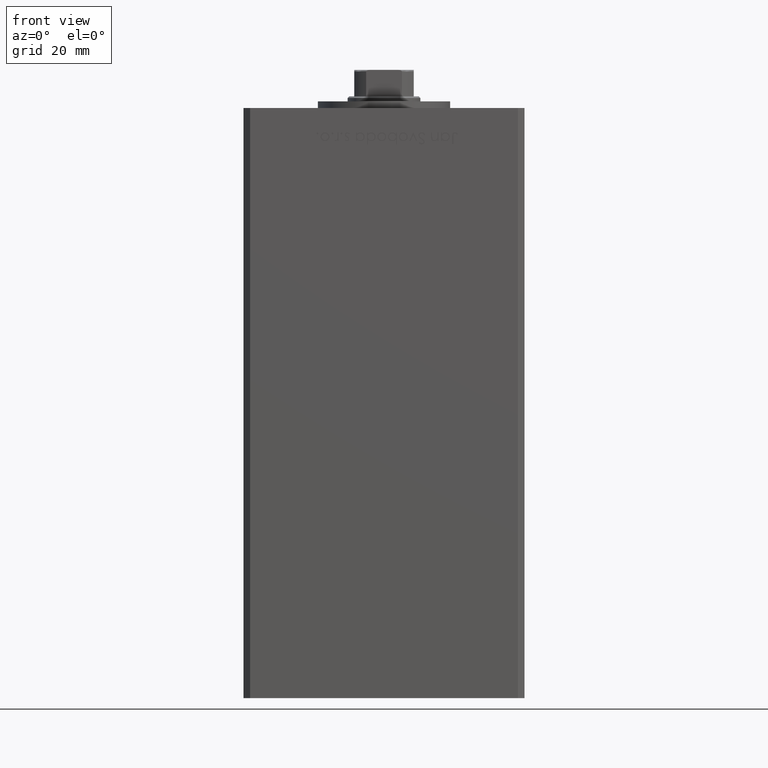
[diagram: clean part render]
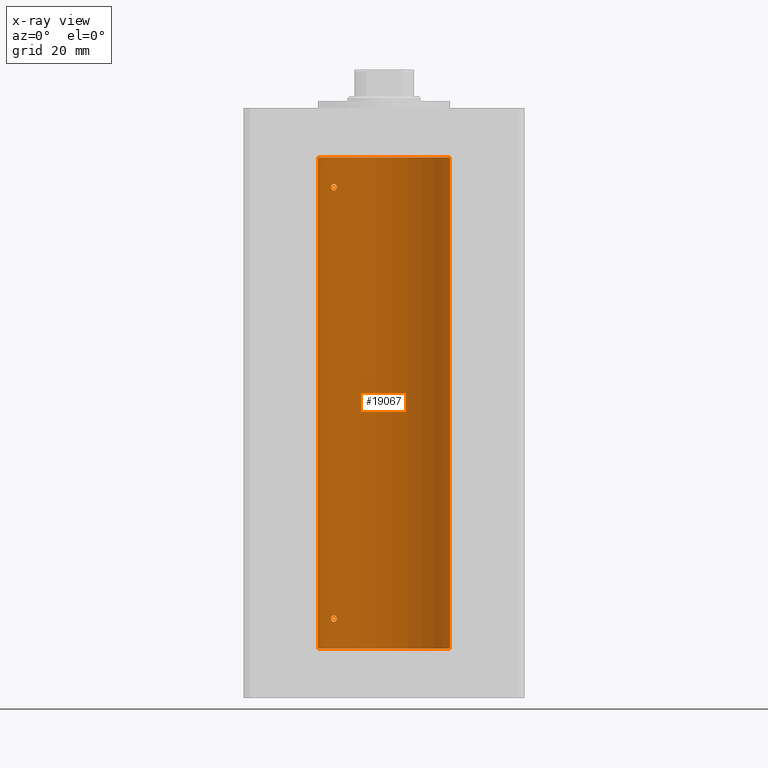
[diagram: x-ray — body ghosted, one internal face saturated and labeled with its STEP entity id]
A machine part, front view, then the same camera in x-ray: the body is ghosted and one INTERNAL B-rep face — a face not visible from any outside direction — is saturated and labeled: STEP entity #19067.
In plain terms, the highlighted cylindrical surface (partial cylindrical patch) has radius 20 mm, axis along (-0, -0, -1).
Its self-contained STEP definition (entity closure, byte-faithful):
#832 = CARTESIAN_POINT ( 'NONE',  ( -15.08054978948644198, 13.13774395934156836, 8.002776544152998994 ) ) ;
#903 = AXIS2_PLACEMENT_3D ( 'NONE', #5692, #41063, #37623 ) ;
#3768 = CARTESIAN_POINT ( 'NONE',  ( -14.98166541227929116, 13.25033217142396325, 8.024769614914273319 ) ) ;
#3857 = CARTESIAN_POINT ( 'NONE',  ( -15.65267653428112382, 12.45028749062557161, 140.3454911519634720 ) ) ;
#4512 = EDGE_CURVE ( 'NONE', #9910, #47240, #39162, .T. ) ;
#4538 = CARTESIAN_POINT ( 'NONE',  ( -14.51590294503183820, 13.75881262167379049, 8.336781207422363948 ) ) ;
#5268 = VERTEX_POINT ( 'NONE', #14088 ) ;
#5692 = CARTESIAN_POINT ( 'NONE',  ( 0.000000000000000000, 0.000000000000000000, 148.5000000000000000 ) ) ;
#6208 = AXIS2_PLACEMENT_3D ( 'NONE', #15851, #44365, #19817 ) ;
#6546 = CARTESIAN_POINT ( 'NONE',  ( -15.80861854366319719, 12.25167421322532491, 9.676052991901704203 ) ) ;
#7075 = CARTESIAN_POINT ( 'NONE',  ( -14.78630942130979342, 13.46798002156744545, 9.891415279583977593 ) ) ;
#7291 = CARTESIAN_POINT ( 'NONE',  ( -15.99999999999999645, 12.00000000000001421, 139.6542407199934814 ) ) ;
#7327 = CARTESIAN_POINT ( 'NONE',  ( -14.28285685708537756, 14.00000000000032863, 8.999999999999852562 ) ) ;
#7548 = CARTESIAN_POINT ( 'NONE',  ( -15.87665094074984573, 12.16298652314402240, 140.0660500660139576 ) ) ;
#7692 = FACE_OUTER_BOUND ( 'NONE', #16375, .T. ) ;
#7967 = CYLINDRICAL_SURFACE ( 'NONE', #6208, 20.00000000000000000 ) ;
#8038 = CARTESIAN_POINT ( 'NONE',  ( -14.98166541227928583, 13.25033217142395792, 138.5247696149142200 ) ) ;
#8307 = CARTESIAN_POINT ( 'NONE',  ( -15.99999999999999645, 12.00000000000000711, 139.4999999999999716 ) ) ;
#8396 = LINE ( 'NONE', #29194, #46691 ) ;
#8994 = ORIENTED_EDGE ( 'NONE', *, *, #40301, .T. ) ;
#9048 = CARTESIAN_POINT ( 'NONE',  ( -15.57359523075762198, 12.55100654799543314, 138.5686142754107095 ) ) ;
#9910 = VERTEX_POINT ( 'NONE', #38852 ) ;
#10227 = CARTESIAN_POINT ( 'NONE',  ( -20.00000000000000000, 0.000000000000000000, 148.5000000000000000 ) ) ;
#10243 = CARTESIAN_POINT ( 'NONE',  ( 0.000000000000000000, 0.000000000000000000, 0.000000000000000000 ) ) ;
#10522 = CARTESIAN_POINT ( 'NONE',  ( -14.69171503997126571, 13.57092520311232420, 9.830547039779306218 ) ) ;
#11196 = VERTEX_POINT ( 'NONE', #11310 ) ;
#11310 = CARTESIAN_POINT ( 'NONE',  ( 20.00000000000000000, 2.449293598294706513E-15, 148.5000000000000000 ) ) ;
#11563 = CARTESIAN_POINT ( 'NONE',  ( -14.40763032799400989, 13.87162499441319952, 9.495217475255243400 ) ) ;
#11925 = FACE_BOUND ( 'NONE', #29344, .T. ) ;
#11953 = CARTESIAN_POINT ( 'NONE',  ( -15.99999999999999645, 12.00000000000000533, 9.000000000000001776 ) ) ;
#12512 = CARTESIAN_POINT ( 'NONE',  ( -14.51590294503183109, 13.75881262167379404, 138.8367812074224332 ) ) ;
#12762 = CARTESIAN_POINT ( 'NONE',  ( -14.43642497935765512, 13.84184969151371902, 138.9420533359229069 ) ) ;
#13417 = EDGE_CURVE ( 'NONE', #47240, #9910, #27868, .T. ) ;
#13464 = CARTESIAN_POINT ( 'NONE',  ( -20.00000000000000000, 0.000000000000000000, 148.5000000000000000 ) ) ;
#13911 = CARTESIAN_POINT ( 'NONE',  ( -14.98188199575990431, 13.25008090651448001, 140.4752364028577176 ) ) ;
#13974 = CARTESIAN_POINT ( 'NONE',  ( 20.00000000000000000, 2.449293598294706513E-15, 0.000000000000000000 ) ) ;
#14088 = CARTESIAN_POINT ( 'NONE',  ( -14.28285685708538111, 14.00000000000032685, 139.4999999999998579 ) ) ;
#15020 = VERTEX_POINT ( 'NONE', #41888 ) ;
#15482 = VERTEX_POINT ( 'NONE', #13464 ) ;
#15851 = CARTESIAN_POINT ( 'NONE',  ( 0.000000000000000000, 0.000000000000000000, 148.5000000000000000 ) ) ;
#16145 = CARTESIAN_POINT ( 'NONE',  ( -15.97265980134107721, 12.03662641108511977, 8.695337314863895273 ) ) ;
#16375 = EDGE_LOOP ( 'NONE', ( #47198, #8994, #24261, #49344 ) ) ;
#16631 = FACE_BOUND ( 'NONE', #25849, .T. ) ;
#16696 = CARTESIAN_POINT ( 'NONE',  ( -15.08054978948642955, 13.13774395934156658, 138.5027765441530221 ) ) ;
#18627 = CARTESIAN_POINT ( 'NONE',  ( -14.56006338825494950, 13.71162570780885304, 140.2053579553632972 ) ) ;
#19067 = ADVANCED_FACE ( 'NONE', ( #7692, #16631, #11925 ), #7967, .F. ) ;
#19674 = CARTESIAN_POINT ( 'NONE',  ( -15.99999999999999645, 12.00000000000000711, 139.4999999999999716 ) ) ;
#19817 = DIRECTION ( 'NONE',  ( -1.000000000000000000, 0.000000000000000000, 0.000000000000000000 ) ) ;
#19843 = CARTESIAN_POINT ( 'NONE',  ( -14.43642497935765512, 13.84184969151371547, 8.442053335922926394 ) ) ;
#20170 = EDGE_CURVE ( 'NONE', #11196, #37086, #8396, .T. ) ;
#20621 = CARTESIAN_POINT ( 'NONE',  ( -14.31871019372461795, 13.96358505023715679, 8.697478539577890189 ) ) ;
#21001 = EDGE_CURVE ( 'NONE', #5268, #40527, #35167, .T. ) ;
#22363 = CARTESIAN_POINT ( 'NONE',  ( -14.51882058315760027, 13.75524947942078313, 9.658734659218600527 ) ) ;
#23146 = CARTESIAN_POINT ( 'NONE',  ( -15.65267653428113093, 12.45028749062556450, 9.845491151963429388 ) ) ;
#23388 = ORIENTED_EDGE ( 'NONE', *, *, #4512, .F. ) ;
#23395 = CARTESIAN_POINT ( 'NONE',  ( -16.00000000000000355, 12.00000000000000888, 9.154240719993492092 ) ) ;
#23449 = VECTOR ( 'NONE', #26304, 1000.000000000000000 ) ;
#23619 = CARTESIAN_POINT ( 'NONE',  ( -15.28000793038419403, 12.90520882930644042, 140.5021502285312636 ) ) ;
#24261 = ORIENTED_EDGE ( 'NONE', *, *, #33285, .T. ) ;
#24360 = CARTESIAN_POINT ( 'NONE',  ( -15.80909732170550441, 12.25106527276996360, 138.8244517809014553 ) ) ;
#24576 = CARTESIAN_POINT ( 'NONE',  ( -16.00000000000000355, 12.00000000000000711, 8.845692188641406162 ) ) ;
#25118 = CARTESIAN_POINT ( 'NONE',  ( -15.37869471769012009, 12.79018928545119849, 138.4951659137117872 ) ) ;
#25849 = EDGE_LOOP ( 'NONE', ( #23388, #34576 ) ) ;
#26026 = CARTESIAN_POINT ( 'NONE',  ( -14.78630942130979697, 13.46798002156743301, 140.3914152795839527 ) ) ;
#26304 = DIRECTION ( 'NONE',  ( -0.000000000000000000, -0.000000000000000000, -1.000000000000000000 ) ) ;
#26561 = CARTESIAN_POINT ( 'NONE',  ( -14.51882058315760027, 13.75524947942078136, 140.1587346592185384 ) ) ;
#26846 = CARTESIAN_POINT ( 'NONE',  ( -15.28000793038418870, 12.90520882930645108, 10.00215022853122981 ) ) ;
#27626 = CARTESIAN_POINT ( 'NONE',  ( -15.99999999999999645, 12.00000000000000533, 9.000000000000001776 ) ) ;
#27849 = CARTESIAN_POINT ( 'NONE',  ( -15.37869370082499287, 12.78737709343838880, 140.4843784334833003 ) ) ;
#27868 = B_SPLINE_CURVE_WITH_KNOTS ( 'NONE', 3,
 ( #7327, #46658, #51386, #11563, #31068, #22363, #50610, #10522, #7075, #43212, #42697, #26846, #30554, #34783, #23146, #6546, #39256, #38477, #23395, #27626 ),
 .UNSPECIFIED., .F., .F.,
 ( 4, 2, 2, 2, 2, 2, 2, 2, 2, 4 ),
 ( 0.003644921977557299617, 0.004100339128177156109, 0.004328047703487083488, 0.004555756278797011734, 0.005011173429416868226, 0.005466590580036723851, 0.005922007730656580343, 0.006377424881276436835, 0.006832842031896293328, 0.007288259182516148953 ),
 .UNSPECIFIED. ) ;
#28289 = CARTESIAN_POINT ( 'NONE',  ( -14.28285685708537756, 14.00000000000032863, 8.999999999999852562 ) ) ;
#28584 = CARTESIAN_POINT ( 'NONE',  ( -15.97265980134107366, 12.03662641108512332, 139.1953373148638775 ) ) ;
#29194 = CARTESIAN_POINT ( 'NONE',  ( 20.00000000000000000, 2.449293598294706513E-15, 148.5000000000000000 ) ) ;
#29344 = EDGE_LOOP ( 'NONE', ( #50834, #44949 ) ) ;
#29727 = CARTESIAN_POINT ( 'NONE',  ( -14.69171503997127459, 13.57092520311232065, 140.3305470397792760 ) ) ;
#29990 = CARTESIAN_POINT ( 'NONE',  ( -14.28285685708538111, 14.00000000000032685, 139.4999999999998579 ) ) ;
#30263 = LINE ( 'NONE', #10227, #23449 ) ;
#30554 = CARTESIAN_POINT ( 'NONE',  ( -15.37869370082498044, 12.78737709343839057, 9.984378433483314552 ) ) ;
#31068 = CARTESIAN_POINT ( 'NONE',  ( -14.44276720520014123, 13.83508275448403957, 9.554048662650277635 ) ) ;
#31983 = CARTESIAN_POINT ( 'NONE',  ( -14.78531327857342781, 13.46907986586309569, 8.109099006911453245 ) ) ;
#32029 = CARTESIAN_POINT ( 'NONE',  ( -15.99999999999999645, 12.00000000000001243, 139.3456921886414648 ) ) ;
#32078 = CARTESIAN_POINT ( 'NONE',  ( -15.56338254739985949, 12.56194079578774847, 140.4068150496692908 ) ) ;
#32249 = CARTESIAN_POINT ( 'NONE',  ( -14.69070843596623099, 13.57200975233014972, 8.170264738076779665 ) ) ;
#32295 = CARTESIAN_POINT ( 'NONE',  ( -15.87710824431565904, 12.16238752415382507, 138.9349218073222403 ) ) ;
#32404 = DIRECTION ( 'NONE',  ( -0.000000000000000000, -0.000000000000000000, -1.000000000000000000 ) ) ;
#32805 = CARTESIAN_POINT ( 'NONE',  ( -14.69070843596622744, 13.57200975233015683, 138.6702647380768099 ) ) ;
#33285 = EDGE_CURVE ( 'NONE', #15482, #15020, #30263, .T. ) ;
#33690 = EDGE_CURVE ( 'NONE', #40527, #5268, #48735, .T. ) ;
#33962 = CARTESIAN_POINT ( 'NONE',  ( -14.31936354392034971, 13.96291496472316140, 139.8044284570273419 ) ) ;
#34576 = ORIENTED_EDGE ( 'NONE', *, *, #13417, .F. ) ;
#34783 = CARTESIAN_POINT ( 'NONE',  ( -15.56338254739985594, 12.56194079578775202, 9.906815049669283724 ) ) ;
#35008 = CARTESIAN_POINT ( 'NONE',  ( -14.44276720520014123, 13.83508275448404135, 140.0540486626502741 ) ) ;
#35167 = B_SPLINE_CURVE_WITH_KNOTS ( 'NONE', 3,
 ( #29990, #51092, #33962, #50057, #35008, #26561, #18627, #29727, #26026, #13911, #42135, #23619, #27849, #32078, #3857, #43428, #7548, #35518, #7291, #19674 ),
 .UNSPECIFIED., .F., .F.,
 ( 4, 2, 2, 2, 2, 2, 2, 2, 2, 4 ),
 ( 0.003644921977557289642, 0.004100339128177102332, 0.004328047703487008027, 0.004555756278796913722, 0.005011173429416777153, 0.005466590580036640584, 0.005922007730656504015, 0.006377424881276367447, 0.006832842031896230010, 0.007288259182516093442 ),
 .UNSPECIFIED. ) ;
#35518 = CARTESIAN_POINT ( 'NONE',  ( -15.97258576326347779, 12.03672672663915044, 139.8051374092137280 ) ) ;
#36324 = CIRCLE ( 'NONE', #903, 20.00000000000000000 ) ;
#37086 = VERTEX_POINT ( 'NONE', #13974 ) ;
#37276 = CARTESIAN_POINT ( 'NONE',  ( -14.31871019372461618, 13.96358505023716567, 139.1974785395779008 ) ) ;
#37623 = DIRECTION ( 'NONE',  ( 1.000000000000000000, 0.000000000000000000, 0.000000000000000000 ) ) ;
#37676 = DIRECTION ( 'NONE',  ( 1.000000000000000000, 0.000000000000000000, 0.000000000000000000 ) ) ;
#38126 = AXIS2_PLACEMENT_3D ( 'NONE', #10243, #42428, #37676 ) ;
#38477 = CARTESIAN_POINT ( 'NONE',  ( -15.97258576326346713, 12.03672672663914689, 9.305137409213726229 ) ) ;
#38852 = CARTESIAN_POINT ( 'NONE',  ( -15.99999999999999645, 12.00000000000000533, 9.000000000000001776 ) ) ;
#38985 = CIRCLE ( 'NONE', #38126, 20.00000000000000000 ) ;
#39162 = B_SPLINE_CURVE_WITH_KNOTS ( 'NONE', 3,
 ( #11953, #24576, #16145, #44905, #48089, #52031, #43853, #832, #3768, #31983, #32249, #4538, #19843, #20621, #48358, #28289 ),
 .UNSPECIFIED., .F., .F.,
 ( 4, 2, 2, 2, 2, 2, 2, 4 ),
 ( 1.734723475976807094E-18, 0.0004556152471946670057, 0.0009112304943893322767, 0.001822460988778654796, 0.002278076235973315947, 0.002733691483167977315, 0.003189306730362638249, 0.003644921977557299617 ),
 .UNSPECIFIED. ) ;
#39256 = CARTESIAN_POINT ( 'NONE',  ( -15.87665094074984928, 12.16298652314402950, 9.566050066014014419 ) ) ;
#40301 = EDGE_CURVE ( 'NONE', #11196, #15482, #36324, .T. ) ;
#40475 = CARTESIAN_POINT ( 'NONE',  ( -15.99999999999999645, 12.00000000000000711, 139.4999999999999716 ) ) ;
#40527 = VERTEX_POINT ( 'NONE', #8307 ) ;
#41063 = DIRECTION ( 'NONE',  ( -0.000000000000000000, 0.000000000000000000, 1.000000000000000000 ) ) ;
#41232 = CARTESIAN_POINT ( 'NONE',  ( -14.78531327857342781, 13.46907986586309747, 138.6090990069114639 ) ) ;
#41888 = CARTESIAN_POINT ( 'NONE',  ( -20.00000000000000000, 0.000000000000000000, 0.000000000000000000 ) ) ;
#42135 = CARTESIAN_POINT ( 'NONE',  ( -15.08229700616151625, 13.13572892147764470, 140.4974307527147630 ) ) ;
#42428 = DIRECTION ( 'NONE',  ( -0.000000000000000000, 0.000000000000000000, 1.000000000000000000 ) ) ;
#42697 = CARTESIAN_POINT ( 'NONE',  ( -15.08229700616151270, 13.13572892147766247, 9.997430752714780766 ) ) ;
#43212 = CARTESIAN_POINT ( 'NONE',  ( -14.98188199575990254, 13.25008090651449244, 9.975236402857756701 ) ) ;
#43428 = CARTESIAN_POINT ( 'NONE',  ( -15.80861854366319363, 12.25167421322532491, 140.1760529919016278 ) ) ;
#43853 = CARTESIAN_POINT ( 'NONE',  ( -15.37869471769012897, 12.79018928545119671, 7.995165913711804073 ) ) ;
#44169 = CARTESIAN_POINT ( 'NONE',  ( -14.28285685708538111, 14.00000000000032685, 139.4999999999998579 ) ) ;
#44365 = DIRECTION ( 'NONE',  ( -0.000000000000000000, -0.000000000000000000, -1.000000000000000000 ) ) ;
#44905 = CARTESIAN_POINT ( 'NONE',  ( -15.87710824431566614, 12.16238752415382152, 8.434921807322277587 ) ) ;
#44949 = ORIENTED_EDGE ( 'NONE', *, *, #21001, .F. ) ;
#46658 = CARTESIAN_POINT ( 'NONE',  ( -14.28285685708573460, 14.00000000000003020, 9.152512609665841126 ) ) ;
#46691 = VECTOR ( 'NONE', #32404, 1000.000000000000000 ) ;
#47198 = ORIENTED_EDGE ( 'NONE', *, *, #20170, .F. ) ;
#47240 = VERTEX_POINT ( 'NONE', #51153 ) ;
#48089 = CARTESIAN_POINT ( 'NONE',  ( -15.80909732170550441, 12.25106527276995649, 8.324451780901405584 ) ) ;
#48358 = CARTESIAN_POINT ( 'NONE',  ( -14.28285685708575414, 14.00000000000000000, 8.847421050659345809 ) ) ;
#48735 = B_SPLINE_CURVE_WITH_KNOTS ( 'NONE', 3,
 ( #40475, #32029, #28584, #32295, #24360, #9048, #25118, #16696, #8038, #41232, #32805, #12512, #12762, #37276, #48901, #44169 ),
 .UNSPECIFIED., .F., .F.,
 ( 4, 2, 2, 2, 2, 2, 2, 4 ),
 ( 0.000000000000000000, 0.0004556152471946793114, 0.0009112304943893586228, 0.001822460988778669107, 0.002278076235973324620, 0.002733691483167979483, 0.003189306730362634346, 0.003644921977557289642 ),
 .UNSPECIFIED. ) ;
#48901 = CARTESIAN_POINT ( 'NONE',  ( -14.28285685708575770, 14.00000000000000355, 139.3474210506593352 ) ) ;
#49344 = ORIENTED_EDGE ( 'NONE', *, *, #49427, .F. ) ;
#49427 = EDGE_CURVE ( 'NONE', #37086, #15020, #38985, .T. ) ;
#50057 = CARTESIAN_POINT ( 'NONE',  ( -14.40763032799401877, 13.87162499441318886, 139.9952174752552594 ) ) ;
#50610 = CARTESIAN_POINT ( 'NONE',  ( -14.56006338825494772, 13.71162570780885126, 9.705357955363313138 ) ) ;
#50834 = ORIENTED_EDGE ( 'NONE', *, *, #33690, .F. ) ;
#51092 = CARTESIAN_POINT ( 'NONE',  ( -14.28285685708573105, 14.00000000000002487, 139.6525126096658482 ) ) ;
#51153 = CARTESIAN_POINT ( 'NONE',  ( -14.28285685708537756, 14.00000000000032863, 8.999999999999852562 ) ) ;
#51386 = CARTESIAN_POINT ( 'NONE',  ( -14.31936354392034616, 13.96291496472316496, 9.304428457027322352 ) ) ;
#52031 = CARTESIAN_POINT ( 'NONE',  ( -15.57359523075763086, 12.55100654799543136, 8.068614275410753933 ) ) ;